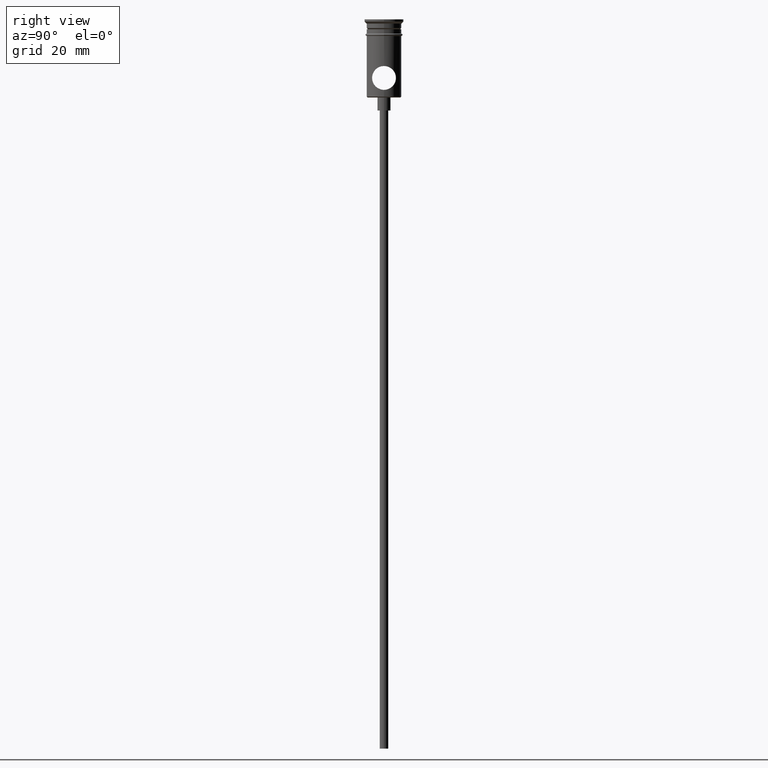
[diagram: clean part render]
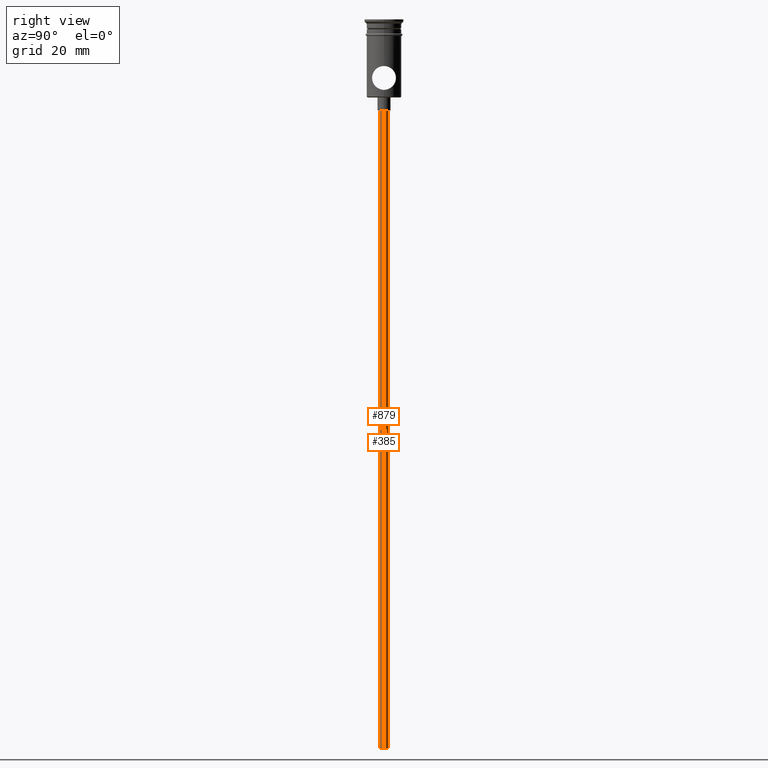
[diagram: same view with one multi-face feature highlighted, each face labeled with its STEP entity id]
A machine part, right view. The highlighted faces form ONE feature: a constant-radius fillet chain: 2 tangent blend faces with common blend radius 1 mm. The faces share edges in the B-rep.
Their STEP definitions:
[1] entity #879 (Cylinder):
#2 = DIRECTION ( 'NONE',  ( -0.000000000000000000, -0.000000000000000000, 1.000000000000000000 ) ) ;
#57 = EDGE_CURVE ( 'NONE', #461, #67, #649, .T. ) ;
#67 = VERTEX_POINT ( 'NONE', #311 ) ;
#125 = CARTESIAN_POINT ( 'NONE',  ( -0.9999999999999997780, 1.224646799147352961E-16, -167.9999999999999716 ) ) ;
#169 = CARTESIAN_POINT ( 'NONE',  ( -0.9999999999999997780, 1.224646799147352961E-16, -20.99999999999999645 ) ) ;
#173 = EDGE_LOOP ( 'NONE', ( #1337, #703, #952, #443 ) ) ;
#254 = CIRCLE ( 'NONE', #785, 0.9999999999999997780 ) ;
#256 = CYLINDRICAL_SURFACE ( 'NONE', #556, 0.9999999999999997780 ) ;
#274 = CIRCLE ( 'NONE', #550, 0.9999999999999997780 ) ;
#295 = CARTESIAN_POINT ( 'NONE',  ( -0.9999999999999997780, 1.224646799147352961E-16, -167.9999999999999716 ) ) ;
#306 = VERTEX_POINT ( 'NONE', #169 ) ;
#311 = CARTESIAN_POINT ( 'NONE',  ( 0.9999999999999997780, 0.000000000000000000, -20.99999999999999645 ) ) ;
#345 = CARTESIAN_POINT ( 'NONE',  ( 0.000000000000000000, 0.000000000000000000, -20.99999999999999645 ) ) ;
#443 = ORIENTED_EDGE ( 'NONE', *, *, #646, .T. ) ;
#446 = CARTESIAN_POINT ( 'NONE',  ( 0.9999999999999997780, 0.000000000000000000, -167.9999999999999716 ) ) ;
#461 = VERTEX_POINT ( 'NONE', #1241 ) ;
#546 = EDGE_CURVE ( 'NONE', #461, #982, #254, .T. ) ;
#550 = AXIS2_PLACEMENT_3D ( 'NONE', #345, #818, #1236 ) ;
#556 = AXIS2_PLACEMENT_3D ( 'NONE', #1106, #2, #790 ) ;
#595 = FACE_OUTER_BOUND ( 'NONE', #173, .T. ) ;
#610 = EDGE_CURVE ( 'NONE', #982, #306, #905, .T. ) ;
#646 = EDGE_CURVE ( 'NONE', #67, #306, #274, .T. ) ;
#649 = LINE ( 'NONE', #446, #713 ) ;
#703 = ORIENTED_EDGE ( 'NONE', *, *, #546, .F. ) ;
#713 = VECTOR ( 'NONE', #1082, 1000.000000000000000 ) ;
#770 = DIRECTION ( 'NONE',  ( 0.000000000000000000, 0.000000000000000000, -1.000000000000000000 ) ) ;
#785 = AXIS2_PLACEMENT_3D ( 'NONE', #1285, #770, #971 ) ;
#790 = DIRECTION ( 'NONE',  ( 1.000000000000000000, 0.000000000000000000, 0.000000000000000000 ) ) ;
#811 = DIRECTION ( 'NONE',  ( -0.000000000000000000, -0.000000000000000000, 1.000000000000000000 ) ) ;
#818 = DIRECTION ( 'NONE',  ( 0.000000000000000000, 0.000000000000000000, -1.000000000000000000 ) ) ;
#879 = ADVANCED_FACE ( 'NONE', ( #595 ), #256, .T. ) ;
#905 = LINE ( 'NONE', #125, #1052 ) ;
#952 = ORIENTED_EDGE ( 'NONE', *, *, #57, .T. ) ;
#971 = DIRECTION ( 'NONE',  ( -1.000000000000000000, 0.000000000000000000, 0.000000000000000000 ) ) ;
#982 = VERTEX_POINT ( 'NONE', #295 ) ;
#1052 = VECTOR ( 'NONE', #811, 1000.000000000000000 ) ;
#1082 = DIRECTION ( 'NONE',  ( -0.000000000000000000, -0.000000000000000000, 1.000000000000000000 ) ) ;
#1106 = CARTESIAN_POINT ( 'NONE',  ( 0.000000000000000000, 0.000000000000000000, -167.9999999999999716 ) ) ;
#1236 = DIRECTION ( 'NONE',  ( -1.000000000000000000, 0.000000000000000000, 0.000000000000000000 ) ) ;
#1241 = CARTESIAN_POINT ( 'NONE',  ( 0.9999999999999997780, 0.000000000000000000, -167.9999999999999716 ) ) ;
#1285 = CARTESIAN_POINT ( 'NONE',  ( 0.000000000000000000, 0.000000000000000000, -167.9999999999999716 ) ) ;
#1337 = ORIENTED_EDGE ( 'NONE', *, *, #610, .F. ) ;
[2] entity #385 (Cylinder):
#38 = AXIS2_PLACEMENT_3D ( 'NONE', #174, #918, #43 ) ;
#43 = DIRECTION ( 'NONE',  ( -1.000000000000000000, 0.000000000000000000, 0.000000000000000000 ) ) ;
#52 = CARTESIAN_POINT ( 'NONE',  ( 0.000000000000000000, 0.000000000000000000, -167.9999999999999716 ) ) ;
#57 = EDGE_CURVE ( 'NONE', #461, #67, #649, .T. ) ;
#67 = VERTEX_POINT ( 'NONE', #311 ) ;
#70 = ORIENTED_EDGE ( 'NONE', *, *, #610, .T. ) ;
#114 = ORIENTED_EDGE ( 'NONE', *, *, #977, .F. ) ;
#125 = CARTESIAN_POINT ( 'NONE',  ( -0.9999999999999997780, 1.224646799147352961E-16, -167.9999999999999716 ) ) ;
#139 = AXIS2_PLACEMENT_3D ( 'NONE', #52, #500, #934 ) ;
#169 = CARTESIAN_POINT ( 'NONE',  ( -0.9999999999999997780, 1.224646799147352961E-16, -20.99999999999999645 ) ) ;
#174 = CARTESIAN_POINT ( 'NONE',  ( 0.000000000000000000, 0.000000000000000000, -20.99999999999999645 ) ) ;
#176 = FACE_OUTER_BOUND ( 'NONE', #875, .T. ) ;
#295 = CARTESIAN_POINT ( 'NONE',  ( -0.9999999999999997780, 1.224646799147352961E-16, -167.9999999999999716 ) ) ;
#306 = VERTEX_POINT ( 'NONE', #169 ) ;
#311 = CARTESIAN_POINT ( 'NONE',  ( 0.9999999999999997780, 0.000000000000000000, -20.99999999999999645 ) ) ;
#385 = ADVANCED_FACE ( 'NONE', ( #176 ), #716, .T. ) ;
#446 = CARTESIAN_POINT ( 'NONE',  ( 0.9999999999999997780, 0.000000000000000000, -167.9999999999999716 ) ) ;
#449 = EDGE_CURVE ( 'NONE', #306, #67, #666, .T. ) ;
#461 = VERTEX_POINT ( 'NONE', #1241 ) ;
#500 = DIRECTION ( 'NONE',  ( 0.000000000000000000, 0.000000000000000000, -1.000000000000000000 ) ) ;
#507 = AXIS2_PLACEMENT_3D ( 'NONE', #1026, #1343, #726 ) ;
#610 = EDGE_CURVE ( 'NONE', #982, #306, #905, .T. ) ;
#649 = LINE ( 'NONE', #446, #713 ) ;
#666 = CIRCLE ( 'NONE', #38, 0.9999999999999997780 ) ;
#713 = VECTOR ( 'NONE', #1082, 1000.000000000000000 ) ;
#716 = CYLINDRICAL_SURFACE ( 'NONE', #507, 0.9999999999999997780 ) ;
#726 = DIRECTION ( 'NONE',  ( 1.000000000000000000, 0.000000000000000000, 0.000000000000000000 ) ) ;
#768 = CIRCLE ( 'NONE', #139, 0.9999999999999997780 ) ;
#811 = DIRECTION ( 'NONE',  ( -0.000000000000000000, -0.000000000000000000, 1.000000000000000000 ) ) ;
#813 = ORIENTED_EDGE ( 'NONE', *, *, #57, .F. ) ;
#875 = EDGE_LOOP ( 'NONE', ( #114, #70, #1158, #813 ) ) ;
#905 = LINE ( 'NONE', #125, #1052 ) ;
#918 = DIRECTION ( 'NONE',  ( 0.000000000000000000, 0.000000000000000000, -1.000000000000000000 ) ) ;
#934 = DIRECTION ( 'NONE',  ( -1.000000000000000000, 0.000000000000000000, 0.000000000000000000 ) ) ;
#977 = EDGE_CURVE ( 'NONE', #982, #461, #768, .T. ) ;
#982 = VERTEX_POINT ( 'NONE', #295 ) ;
#1026 = CARTESIAN_POINT ( 'NONE',  ( 0.000000000000000000, 0.000000000000000000, -167.9999999999999716 ) ) ;
#1052 = VECTOR ( 'NONE', #811, 1000.000000000000000 ) ;
#1082 = DIRECTION ( 'NONE',  ( -0.000000000000000000, -0.000000000000000000, 1.000000000000000000 ) ) ;
#1158 = ORIENTED_EDGE ( 'NONE', *, *, #449, .T. ) ;
#1241 = CARTESIAN_POINT ( 'NONE',  ( 0.9999999999999997780, 0.000000000000000000, -167.9999999999999716 ) ) ;
#1343 = DIRECTION ( 'NONE',  ( -0.000000000000000000, -0.000000000000000000, 1.000000000000000000 ) ) ;